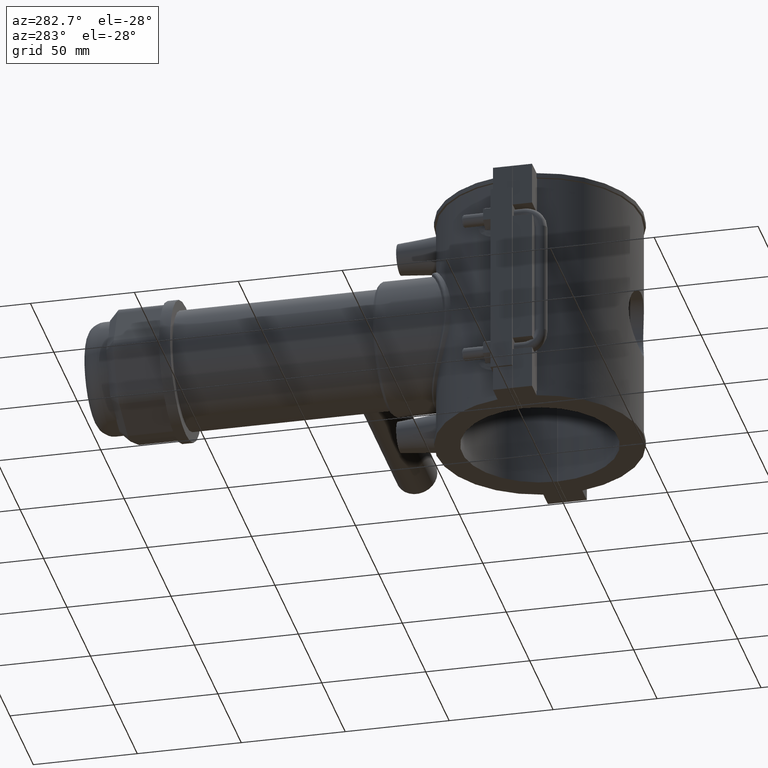
[diagram: clean part render]
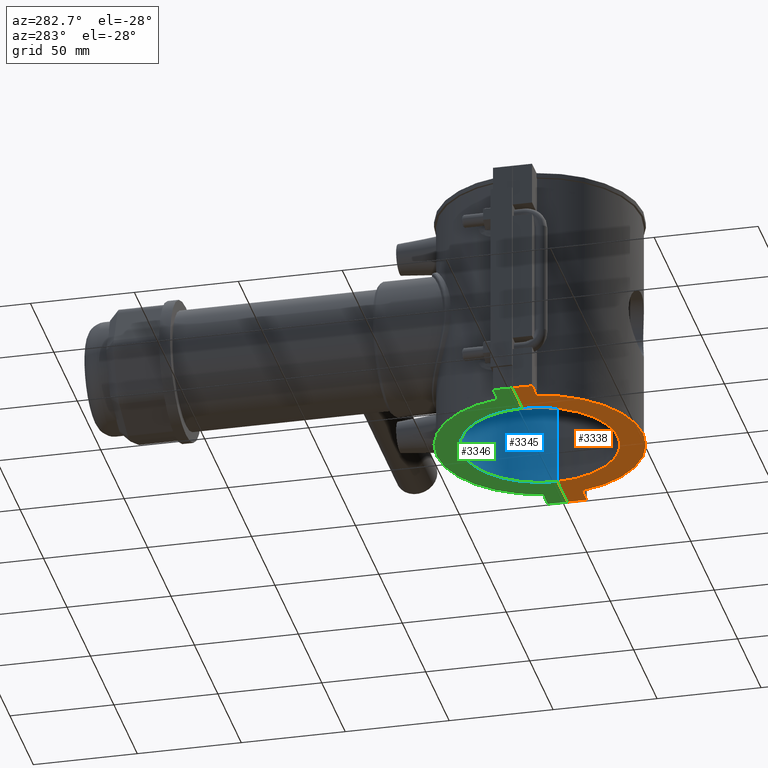
[diagram: same view with three faces highlighted in distinct colors, each labeled with its STEP entity id]
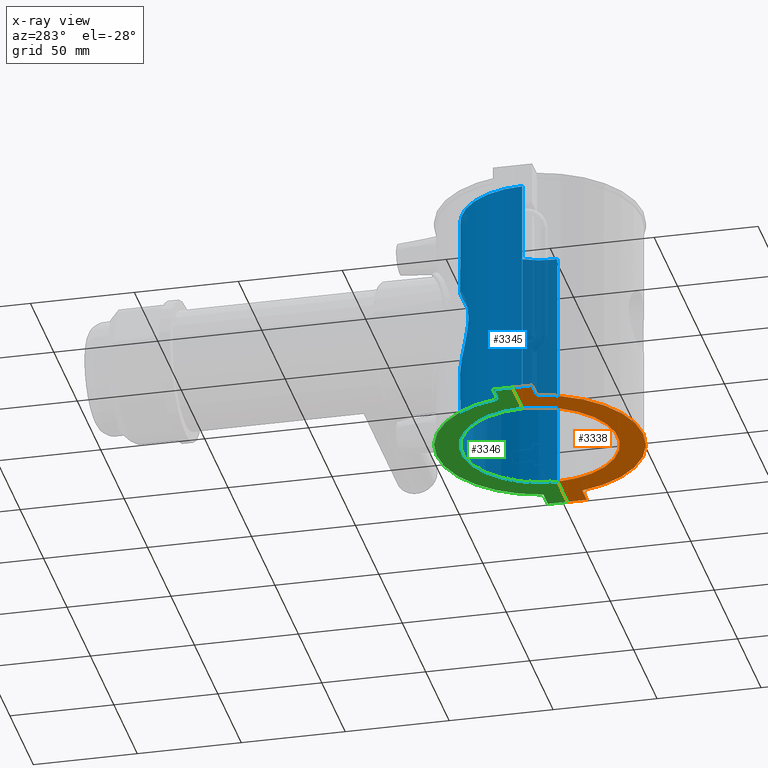
[diagram: x-ray of the same camera — body ghosted, the three highlighted faces saturated]
A machine part, auxiliary view with three faces highlighted in distinct colors.
The next image is the same camera in x-ray (body ghosted, the three faces saturated) — at least one of them is partly hidden behind the body in this view.
Their STEP definitions:

[orange] entity #3338 — the highlighted planar face has unit normal (0, 0, 1).
#125=LINE('',#5467,#412);
#144=LINE('',#5648,#431);
#270=LINE('',#6350,#557);
#311=LINE('',#6625,#598);
#316=LINE('',#6634,#603);
#319=LINE('',#6644,#606);
#412=VECTOR('',#3996,9.66676336755878);
#431=VECTOR('',#4049,9.66676336755878);
#557=VECTOR('',#4383,9.32499999999999);
#598=VECTOR('',#4520,21.0000333333482);
#603=VECTOR('',#4529,9.32499999999999);
#606=VECTOR('',#4542,21.0000333333482);
#958=FACE_OUTER_BOUND('',#1205,.T.);
#1205=EDGE_LOOP('',(#2961,#2962,#2963,#2964,#2965,#2966,#2967,#2968));
#1265=CIRCLE('',#3466,49.725);
#1330=CIRCLE('',#3647,37.5);
#1424=VERTEX_POINT('',#5396);
#1425=VERTEX_POINT('',#5397);
#1445=VERTEX_POINT('',#5465);
#1474=VERTEX_POINT('',#5647);
#1597=VERTEX_POINT('',#6348);
#1635=VERTEX_POINT('',#6622);
#1636=VERTEX_POINT('',#6624);
#1639=VERTEX_POINT('',#6638);
#1776=EDGE_CURVE('',#1424,#1425,#1265,.T.);
#1800=EDGE_CURVE('',#1424,#1445,#125,.T.);
#1835=EDGE_CURVE('',#1474,#1425,#144,.T.);
#2016=EDGE_CURVE('',#1445,#1597,#270,.T.);
#2082=EDGE_CURVE('',#1636,#1635,#311,.T.);
#2087=EDGE_CURVE('',#1635,#1474,#316,.T.);
#2089=EDGE_CURVE('',#1639,#1636,#1330,.T.);
#2092=EDGE_CURVE('',#1597,#1639,#319,.T.);
#2961=ORIENTED_EDGE('',*,*,#2082,.T.);
#2962=ORIENTED_EDGE('',*,*,#2087,.T.);
#2963=ORIENTED_EDGE('',*,*,#1835,.T.);
#2964=ORIENTED_EDGE('',*,*,#1776,.F.);
#2965=ORIENTED_EDGE('',*,*,#1800,.T.);
#2966=ORIENTED_EDGE('',*,*,#2016,.T.);
#2967=ORIENTED_EDGE('',*,*,#2092,.T.);
#2968=ORIENTED_EDGE('',*,*,#2089,.T.);
#3147=PLANE('',#3649);
#3338=ADVANCED_FACE('',(#958),#3147,.F.);
#3466=AXIS2_PLACEMENT_3D('',#5398,#3963,#3964);
#3647=AXIS2_PLACEMENT_3D('',#6639,#4535,#4536);
#3649=AXIS2_PLACEMENT_3D('',#6643,#4540,#4541);
#3963=DIRECTION('center_axis',(0.,0.,1.));
#3964=DIRECTION('ref_axis',(-0.982066096177803,-0.188536953242836,0.));
#3996=DIRECTION('',(-1.,0.,0.));
#4049=DIRECTION('',(-1.,0.,0.));
#4383=DIRECTION('',(0.,1.,0.));
#4520=DIRECTION('',(1.,2.96533927517403E-19,0.));
#4529=DIRECTION('',(0.,-1.,0.));
#4535=DIRECTION('center_axis',(0.,0.,1.));
#4536=DIRECTION('ref_axis',(-1.,0.,0.));
#4540=DIRECTION('center_axis',(0.,0.,1.));
#4541=DIRECTION('ref_axis',(1.,0.,0.));
#4542=DIRECTION('',(1.,2.96533927517403E-19,0.));
#5396=CARTESIAN_POINT('',(-48.8332366324412,-9.375,-59.));
#5397=CARTESIAN_POINT('',(48.8332366324412,-9.375,-59.));
#5398=CARTESIAN_POINT('Origin',(0.,0.,-59.));
#5465=CARTESIAN_POINT('',(-58.5,-9.375,-59.));
#5467=CARTESIAN_POINT('',(-58.5,-9.375,-59.));
#5647=CARTESIAN_POINT('',(58.5,-9.375,-59.));
#5648=CARTESIAN_POINT('',(47.840065583149,-9.375,-59.));
#6348=CARTESIAN_POINT('',(-58.5,-0.0500000000000078,-59.));
#6350=CARTESIAN_POINT('',(-58.5,9.375,-59.));
#6622=CARTESIAN_POINT('',(58.5,-0.0500000000000078,-59.));
#6624=CARTESIAN_POINT('',(37.4999666666519,-0.0500000000000078,-59.));
#6625=CARTESIAN_POINT('',(-56.1401879360865,-0.0500000000000078,-59.));
#6634=CARTESIAN_POINT('',(58.5,-9.375,-59.));
#6638=CARTESIAN_POINT('',(-37.4999666666519,-0.0500000000000078,-59.));
#6639=CARTESIAN_POINT('Origin',(0.,0.,-59.));
#6643=CARTESIAN_POINT('Origin',(-53.780375872173,-1.58495564254233E-16,
-59.));
#6644=CARTESIAN_POINT('',(-56.1401879360865,-0.0500000000000078,-59.));

[blue] entity #3345 — the highlighted cylindrical surface (partial cylindrical patch) has radius 37.5 mm, axis along (0, 0, 1).
#275=LINE('',#6361,#562);
#322=LINE('',#6653,#609);
#562=VECTOR('',#4394,118.);
#609=VECTOR('',#4553,118.);
#679=FACE_BOUND('',#1215,.T.);
#680=B_SPLINE_CURVE_WITH_KNOTS('',3,(#4578,#4579,#4580,#4581,#4582,#4583,
#4584,#4585,#4586,#4587,#4588,#4589,#4590,#4591,#4592,#4593,#4594,#4595,
#4596,#4597,#4598,#4599,#4600,#4601,#4602,#4603,#4604,#4605,#4606,#4607,
#4608,#4609,#4610,#4611,#4612,#4613,#4614,#4615,#4616,#4617,#4618,#4619,
#4620,#4621,#4622,#4623,#4624,#4625,#4626,#4627,#4628,#4629,#4630,#4631,
#4632,#4633,#4634,#4635,#4636,#4637,#4638,#4639,#4640,#4641,#4642,#4643),
 .UNSPECIFIED.,.T.,.F.,(4,2,2,2,2,2,2,2,2,2,2,2,2,2,2,2,2,2,2,2,2,2,2,2,
2,2,2,2,2,2,2,2,4),(0.,0.462807746115,0.92561549223,1.388423238345,1.85123098446,
2.31023161788863,2.76923225131726,3.22823288474589,3.68723351817452,4.14623415160315,
4.60523478503178,5.06423541846041,5.52323605188905,5.98604379800405,6.44885154411905,
6.91165929023405,7.37446703634905,7.83727478246405,8.30008252857905,8.76289027469405,
9.22569802080905,9.68469865423768,10.1436992876663,10.6026999210949,11.0617005545236,
11.5207011879522,11.9797018213808,12.4387024548095,12.8977030882381,13.3605108343531,
13.8233185804681,14.2861263265831,14.7489340726981),.UNSPECIFIED.);
#775=CYLINDRICAL_SURFACE('',#3656,37.5);
#965=FACE_OUTER_BOUND('',#1214,.T.);
#1214=EDGE_LOOP('',(#3017,#3018,#3019,#3020));
#1215=EDGE_LOOP('',(#3021));
#1332=CIRCLE('',#3657,37.5);
#1333=CIRCLE('',#3658,37.5);
#1335=VERTEX_POINT('',#4577);
#1599=VERTEX_POINT('',#6358);
#1600=VERTEX_POINT('',#6360);
#1641=VERTEX_POINT('',#6650);
#1642=VERTEX_POINT('',#6652);
#1645=EDGE_CURVE('',#1335,#1335,#680,.T.);
#2021=EDGE_CURVE('',#1600,#1599,#275,.T.);
#2095=EDGE_CURVE('',#1642,#1641,#322,.T.);
#2100=EDGE_CURVE('',#1600,#1641,#1332,.T.);
#2101=EDGE_CURVE('',#1642,#1599,#1333,.T.);
#3017=ORIENTED_EDGE('',*,*,#2095,.T.);
#3018=ORIENTED_EDGE('',*,*,#2100,.F.);
#3019=ORIENTED_EDGE('',*,*,#2021,.T.);
#3020=ORIENTED_EDGE('',*,*,#2101,.F.);
#3021=ORIENTED_EDGE('',*,*,#1645,.T.);
#3345=ADVANCED_FACE('',(#965,#679),#775,.F.);
#3656=AXIS2_PLACEMENT_3D('',#6661,#4562,#4563);
#3657=AXIS2_PLACEMENT_3D('',#6662,#4564,#4565);
#3658=AXIS2_PLACEMENT_3D('',#6663,#4566,#4567);
#4394=DIRECTION('',(0.,0.,-1.));
#4553=DIRECTION('',(0.,0.,1.));
#4562=DIRECTION('center_axis',(0.,0.,1.));
#4563=DIRECTION('ref_axis',(-1.,0.,0.));
#4564=DIRECTION('center_axis',(0.,0.,-1.));
#4565=DIRECTION('ref_axis',(-1.,0.,0.));
#4566=DIRECTION('center_axis',(0.,0.,1.));
#4567=DIRECTION('ref_axis',(-1.,0.,0.));
#4577=CARTESIAN_POINT('',(-23.625,29.1223174730309,4.08006961549745E-14));
#4578=CARTESIAN_POINT('Ctrl Pts',(-23.625,29.1223174730309,4.08006961549745E-14));
#4579=CARTESIAN_POINT('Ctrl Pts',(-23.625,29.1223174730309,1.54269248705004));
#4580=CARTESIAN_POINT('Ctrl Pts',(-23.4717219223198,29.2486649775297,3.11474441862054));
#4581=CARTESIAN_POINT('Ctrl Pts',(-22.8501952187458,29.7367568856414,6.20418751461353));
#4582=CARTESIAN_POINT('Ctrl Pts',(-22.3822954963763,30.0971774261606,7.72185786580885));
#4583=CARTESIAN_POINT('Ctrl Pts',(-21.1668688353657,30.9640237249437,10.6093392039413));
#4584=CARTESIAN_POINT('Ctrl Pts',(-20.418336007456,31.4698730482701,11.9821958090445));
#4585=CARTESIAN_POINT('Ctrl Pts',(-18.7023056718838,32.518996254107,14.515688910244));
#4586=CARTESIAN_POINT('Ctrl Pts',(-17.7344122510781,33.0614828960146,15.6763831599863));
#4587=CARTESIAN_POINT('Ctrl Pts',(-15.6848479585202,34.0812988190438,17.7259474525442));
#4588=CARTESIAN_POINT('Ctrl Pts',(-14.5286064378956,34.5977594715381,18.6923731499932));
#4589=CARTESIAN_POINT('Ctrl Pts',(-11.9941746252867,35.5559438139942,20.4113937360051));
#4590=CARTESIAN_POINT('Ctrl Pts',(-10.6158403661594,35.9970796214786,21.1641039983853));
#4591=CARTESIAN_POINT('Ctrl Pts',(-7.71602207516126,36.728038593843,22.3847802517598));
#4592=CARTESIAN_POINT('Ctrl Pts',(-6.19152597756031,37.0181562344169,22.8537397635211));
#4593=CARTESIAN_POINT('Ctrl Pts',(-3.09855457541638,37.4042490164161,23.4739722814225));
#4594=CARTESIAN_POINT('Ctrl Pts',(-1.53000211142877,37.5,23.625));
#4595=CARTESIAN_POINT('Ctrl Pts',(1.53000211142876,37.5,23.625));
#4596=CARTESIAN_POINT('Ctrl Pts',(3.09855457541637,37.4042490164161,23.4739722814225));
#4597=CARTESIAN_POINT('Ctrl Pts',(6.19152597756031,37.0181562344169,22.8537397635211));
#4598=CARTESIAN_POINT('Ctrl Pts',(7.71602207516126,36.7280385938431,22.3847802517598));
#4599=CARTESIAN_POINT('Ctrl Pts',(10.6158403661594,35.9970796214786,21.1641039983853));
#4600=CARTESIAN_POINT('Ctrl Pts',(11.9941746252867,35.5559438139942,20.4113937360051));
#4601=CARTESIAN_POINT('Ctrl Pts',(14.5286064378956,34.5977594715381,18.6923731499932));
#4602=CARTESIAN_POINT('Ctrl Pts',(15.6848479585202,34.0812988190438,17.7259474525442));
#4603=CARTESIAN_POINT('Ctrl Pts',(17.7344122510781,33.0614828960146,15.6763831599863));
#4604=CARTESIAN_POINT('Ctrl Pts',(18.7023056718837,32.518996254107,14.515688910244));
#4605=CARTESIAN_POINT('Ctrl Pts',(20.418336007456,31.4698730482701,11.9821958090445));
#4606=CARTESIAN_POINT('Ctrl Pts',(21.1668688353657,30.9640237249437,10.6093392039413));
#4607=CARTESIAN_POINT('Ctrl Pts',(22.3822954963763,30.0971774261606,7.72185786580886));
#4608=CARTESIAN_POINT('Ctrl Pts',(22.8501952187458,29.7367568856414,6.20418751461354));
#4609=CARTESIAN_POINT('Ctrl Pts',(23.4717219223198,29.2486649775297,3.11474441862055));
#4610=CARTESIAN_POINT('Ctrl Pts',(23.625,29.1223174730309,1.54269248705004));
#4611=CARTESIAN_POINT('Ctrl Pts',(23.625,29.1223174730309,-1.54269248704996));
#4612=CARTESIAN_POINT('Ctrl Pts',(23.4717219223198,29.2486649775297,-3.11474441862046));
#4613=CARTESIAN_POINT('Ctrl Pts',(22.8501952187458,29.7367568856414,-6.20418751461344));
#4614=CARTESIAN_POINT('Ctrl Pts',(22.3822954963763,30.0971774261606,-7.72185786580876));
#4615=CARTESIAN_POINT('Ctrl Pts',(21.1668688353657,30.9640237249437,-10.6093392039412));
#4616=CARTESIAN_POINT('Ctrl Pts',(20.4183360074561,31.4698730482701,-11.9821958090444));
#4617=CARTESIAN_POINT('Ctrl Pts',(18.7023056718838,32.518996254107,-14.5156889102439));
#4618=CARTESIAN_POINT('Ctrl Pts',(17.7344122510781,33.0614828960146,-15.6763831599862));
#4619=CARTESIAN_POINT('Ctrl Pts',(15.6848479585202,34.0812988190438,-17.7259474525441));
#4620=CARTESIAN_POINT('Ctrl Pts',(14.5286064378956,34.5977594715381,-18.6923731499931));
#4621=CARTESIAN_POINT('Ctrl Pts',(11.9941746252867,35.5559438139942,-20.4113937360051));
#4622=CARTESIAN_POINT('Ctrl Pts',(10.6158403661594,35.9970796214786,-21.1641039983852));
#4623=CARTESIAN_POINT('Ctrl Pts',(7.71602207516126,36.728038593843,-22.3847802517597));
#4624=CARTESIAN_POINT('Ctrl Pts',(6.19152597756031,37.0181562344169,-22.853739763521));
#4625=CARTESIAN_POINT('Ctrl Pts',(3.09855457541638,37.4042490164161,-23.4739722814224));
#4626=CARTESIAN_POINT('Ctrl Pts',(1.53000211142877,37.5,-23.6249999999999));
#4627=CARTESIAN_POINT('Ctrl Pts',(-1.53000211142876,37.5,-23.6249999999999));
#4628=CARTESIAN_POINT('Ctrl Pts',(-3.09855457541636,37.4042490164161,-23.4739722814224));
#4629=CARTESIAN_POINT('Ctrl Pts',(-6.19152597756029,37.0181562344169,-22.853739763521));
#4630=CARTESIAN_POINT('Ctrl Pts',(-7.71602207516124,36.7280385938431,-22.3847802517597));
#4631=CARTESIAN_POINT('Ctrl Pts',(-10.6158403661593,35.9970796214786,-21.1641039983853));
#4632=CARTESIAN_POINT('Ctrl Pts',(-11.9941746252867,35.5559438139942,-20.4113937360051));
#4633=CARTESIAN_POINT('Ctrl Pts',(-14.5286064378956,34.5977594715381,-18.6923731499931));
#4634=CARTESIAN_POINT('Ctrl Pts',(-15.6848479585202,34.0812988190438,-17.7259474525441));
#4635=CARTESIAN_POINT('Ctrl Pts',(-17.7344122510781,33.0614828960146,-15.6763831599862));
#4636=CARTESIAN_POINT('Ctrl Pts',(-18.7023056718837,32.518996254107,-14.5156889102439));
#4637=CARTESIAN_POINT('Ctrl Pts',(-20.418336007456,31.4698730482701,-11.9821958090444));
#4638=CARTESIAN_POINT('Ctrl Pts',(-21.1668688353657,30.9640237249438,-10.6093392039412));
#4639=CARTESIAN_POINT('Ctrl Pts',(-22.3822954963763,30.0971774261606,-7.72185786580877));
#4640=CARTESIAN_POINT('Ctrl Pts',(-22.8501952187458,29.7367568856414,-6.20418751461345));
#4641=CARTESIAN_POINT('Ctrl Pts',(-23.4717219223198,29.2486649775297,-3.11474441862046));
#4642=CARTESIAN_POINT('Ctrl Pts',(-23.625,29.1223174730309,-1.54269248704996));
#4643=CARTESIAN_POINT('Ctrl Pts',(-23.625,29.1223174730309,4.16333634234434E-14));
#6358=CARTESIAN_POINT('',(-37.4999666666519,0.0500000000000078,-59.));
#6360=CARTESIAN_POINT('',(-37.4999666666519,0.0500000000000078,59.));
#6361=CARTESIAN_POINT('',(-37.4999666666519,0.0500000000000078,0.));
#6650=CARTESIAN_POINT('',(37.4999666666519,0.0500000000000078,59.));
#6652=CARTESIAN_POINT('',(37.4999666666519,0.0500000000000078,-59.));
#6653=CARTESIAN_POINT('',(37.4999666666519,0.0500000000000078,0.));
#6661=CARTESIAN_POINT('Origin',(0.,0.,0.));
#6662=CARTESIAN_POINT('Origin',(0.,0.,59.));
#6663=CARTESIAN_POINT('Origin',(0.,0.,-59.));

[green] entity #3346 — the highlighted planar face has unit normal (0, 0, 1).
#115=LINE('',#5417,#402);
#178=LINE('',#5790,#465);
#274=LINE('',#6359,#561);
#323=LINE('',#6655,#610);
#325=LINE('',#6658,#612);
#326=LINE('',#6660,#613);
#402=VECTOR('',#3980,9.66676336755878);
#465=VECTOR('',#4107,9.32499999999999);
#561=VECTOR('',#4393,21.0000333333482);
#610=VECTOR('',#4554,21.0000333333482);
#612=VECTOR('',#4558,9.66676336755878);
#613=VECTOR('',#4561,9.32499999999999);
#966=FACE_OUTER_BOUND('',#1216,.T.);
#1216=EDGE_LOOP('',(#3022,#3023,#3024,#3025,#3026,#3027,#3028,#3029));
#1262=CIRCLE('',#3461,49.725);
#1333=CIRCLE('',#3658,37.5);
#1418=VERTEX_POINT('',#5381);
#1419=VERTEX_POINT('',#5382);
#1432=VERTEX_POINT('',#5415);
#1508=VERTEX_POINT('',#5787);
#1509=VERTEX_POINT('',#5789);
#1599=VERTEX_POINT('',#6358);
#1642=VERTEX_POINT('',#6652);
#1643=VERTEX_POINT('',#6654);
#1769=EDGE_CURVE('',#1418,#1419,#1262,.T.);
#1786=EDGE_CURVE('',#1418,#1432,#115,.T.);
#1880=EDGE_CURVE('',#1509,#1508,#178,.T.);
#2020=EDGE_CURVE('',#1599,#1509,#274,.T.);
#2096=EDGE_CURVE('',#1643,#1642,#323,.T.);
#2098=EDGE_CURVE('',#1508,#1419,#325,.T.);
#2099=EDGE_CURVE('',#1432,#1643,#326,.T.);
#2101=EDGE_CURVE('',#1642,#1599,#1333,.T.);
#3022=ORIENTED_EDGE('',*,*,#2096,.T.);
#3023=ORIENTED_EDGE('',*,*,#2101,.T.);
#3024=ORIENTED_EDGE('',*,*,#2020,.T.);
#3025=ORIENTED_EDGE('',*,*,#1880,.T.);
#3026=ORIENTED_EDGE('',*,*,#2098,.T.);
#3027=ORIENTED_EDGE('',*,*,#1769,.F.);
#3028=ORIENTED_EDGE('',*,*,#1786,.T.);
#3029=ORIENTED_EDGE('',*,*,#2099,.T.);
#3154=PLANE('',#3659);
#3346=ADVANCED_FACE('',(#966),#3154,.F.);
#3461=AXIS2_PLACEMENT_3D('',#5383,#3949,#3950);
#3658=AXIS2_PLACEMENT_3D('',#6663,#4566,#4567);
#3659=AXIS2_PLACEMENT_3D('',#6664,#4568,#4569);
#3949=DIRECTION('center_axis',(0.,0.,1.));
#3950=DIRECTION('ref_axis',(0.982066096177803,0.188536953242836,0.));
#3980=DIRECTION('',(1.,0.,0.));
#4107=DIRECTION('',(0.,1.,0.));
#4393=DIRECTION('',(-1.,2.96533927517403E-19,0.));
#4554=DIRECTION('',(-1.,2.96533927517403E-19,0.));
#4558=DIRECTION('',(1.,0.,0.));
#4561=DIRECTION('',(0.,-1.,0.));
#4566=DIRECTION('center_axis',(0.,0.,1.));
#4567=DIRECTION('ref_axis',(-1.,0.,0.));
#4568=DIRECTION('center_axis',(0.,0.,1.));
#4569=DIRECTION('ref_axis',(1.,0.,0.));
#5381=CARTESIAN_POINT('',(48.8332366324412,9.375,-59.));
#5382=CARTESIAN_POINT('',(-48.8332366324412,9.375,-59.));
#5383=CARTESIAN_POINT('Origin',(0.,0.,-59.));
#5415=CARTESIAN_POINT('',(58.5,9.375,-59.));
#5417=CARTESIAN_POINT('',(58.5,9.375,-59.));
#5787=CARTESIAN_POINT('',(-58.5,9.375,-59.));
#5789=CARTESIAN_POINT('',(-58.5,0.0500000000000078,-59.));
#5790=CARTESIAN_POINT('',(-58.5,9.375,-59.));
#6358=CARTESIAN_POINT('',(-37.4999666666519,0.0500000000000078,-59.));
#6359=CARTESIAN_POINT('',(2.35981206391352,0.0500000000000078,-59.));
#6652=CARTESIAN_POINT('',(37.4999666666519,0.0500000000000078,-59.));
#6654=CARTESIAN_POINT('',(58.5,0.0500000000000078,-59.));
#6655=CARTESIAN_POINT('',(2.35981206391352,0.0500000000000078,-59.));
#6658=CARTESIAN_POINT('',(-47.840065583149,9.375,-59.));
#6660=CARTESIAN_POINT('',(58.5,-9.375,-59.));
#6663=CARTESIAN_POINT('Origin',(0.,0.,-59.));
#6664=CARTESIAN_POINT('Origin',(-53.780375872173,-1.58495564254233E-16,
-59.));